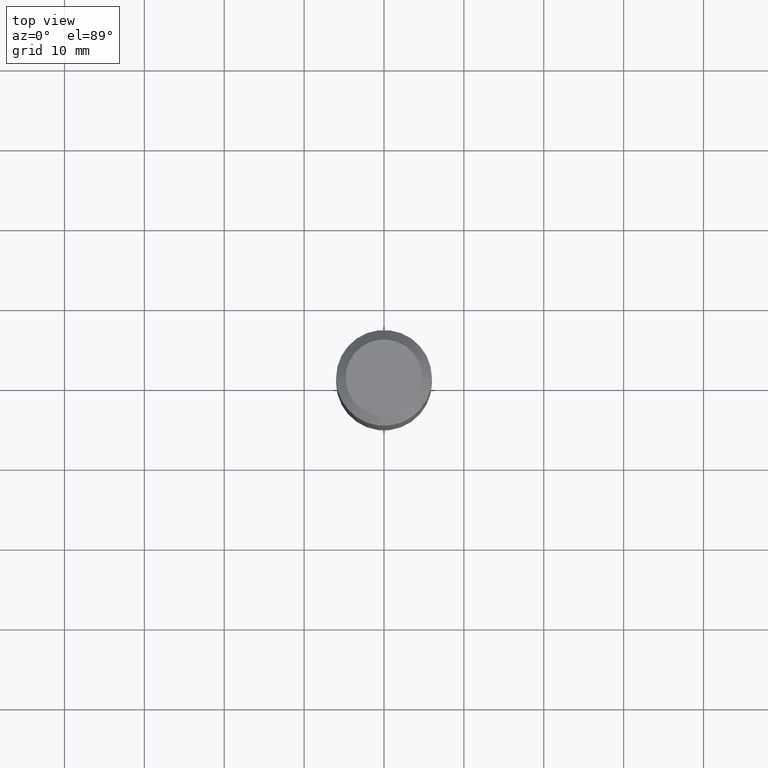
[diagram: clean part render]
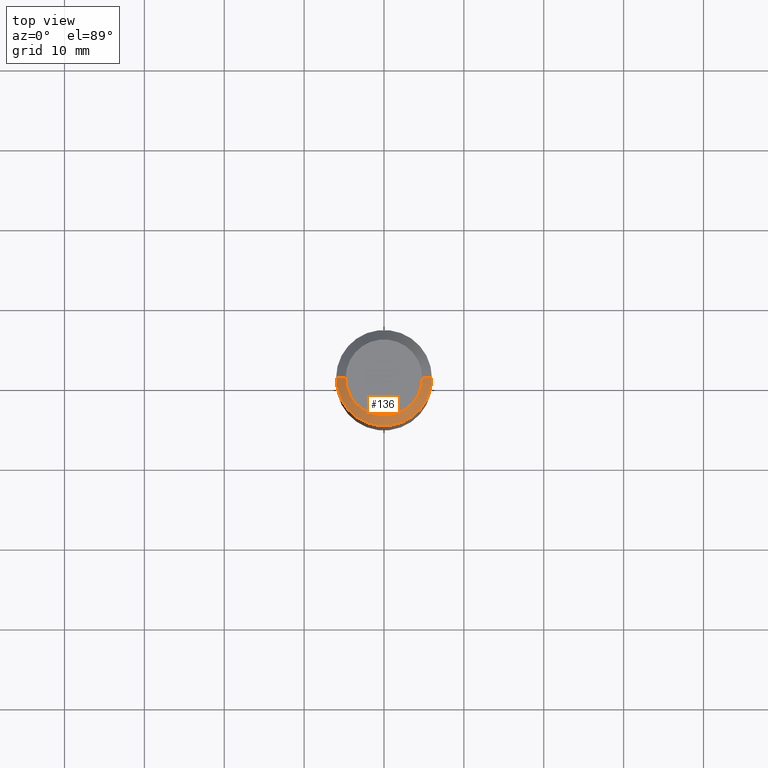
[diagram: same view with one face highlighted and labeled with its STEP entity id]
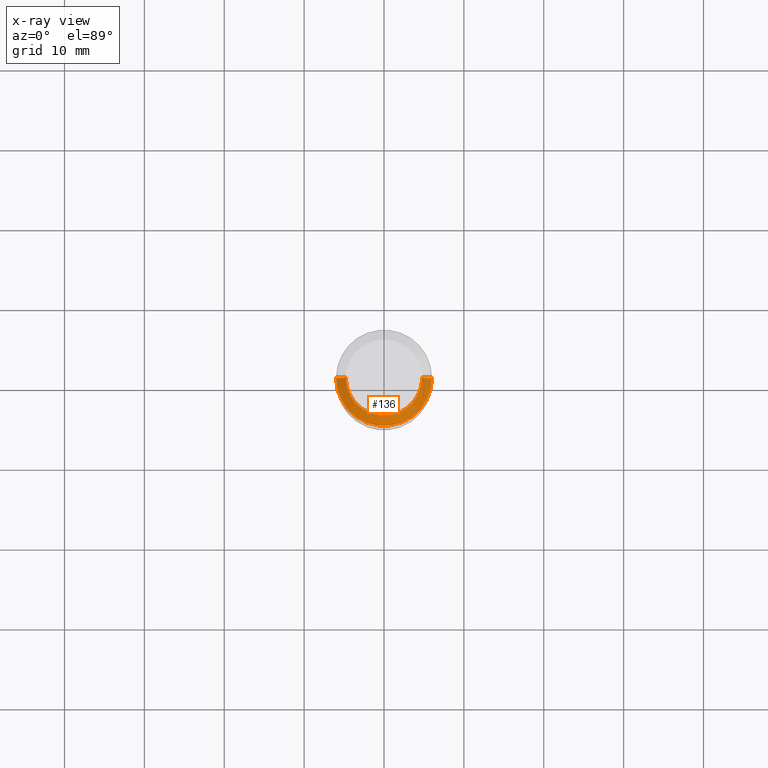
[diagram: x-ray of the same camera — body ghosted, the highlighted face saturated]
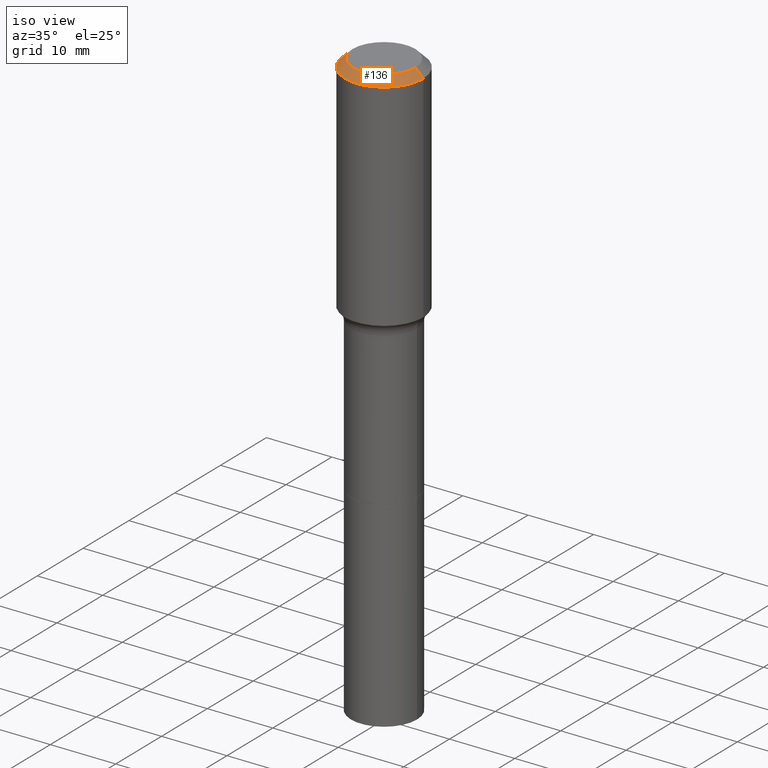
[diagram: same view with one face highlighted and labeled with its STEP entity id]
A machine part, top view. The second image highlights one B-rep face of the part: STEP entity #136.
The next image is the same camera in x-ray: the body ghosted, the highlighted face saturated — about 0% of this face is hidden behind the body in this view.
A second angle (iso view) of the same face is appended — the face is thin or edge-on in the first view.
In plain terms, the highlighted conical surface has half-angle 45 deg.
Its self-contained STEP definition (entity closure, byte-faithful):
#5 = AXIS2_PLACEMENT_3D ( 'NONE', #108, #430, #391 ) ;
#25 = EDGE_CURVE ( 'NONE', #45, #323, #76, .T. ) ;
#37 = DIRECTION ( 'NONE',  ( -0.7071067811865453523, 2.468850131082234184E-15, -0.7071067811865496822 ) ) ;
#45 = VERTEX_POINT ( 'NONE', #111 ) ;
#47 = DIRECTION ( 'NONE',  ( 0.7071067811865453523, -7.319954787623248157E-15, -0.7071067811865496822 ) ) ;
#51 = CARTESIAN_POINT ( 'NONE',  ( 0.2361999999999999933, -1.814313362916447440E-15, -0.04724000000000028870 ) ) ;
#76 = LINE ( 'NONE', #313, #150 ) ;
#82 = EDGE_CURVE ( 'NONE', #310, #170, #438, .T. ) ;
#87 = VECTOR ( 'NONE', #37, 39.37007874015748143 ) ;
#108 = CARTESIAN_POINT ( 'NONE',  ( 1.155239464041865682E-30, -1.649375784469512105E-16, -0.04724000000000028870 ) ) ;
#111 = CARTESIAN_POINT ( 'NONE',  ( 0.1889600000000000168, -1.540873453589747738E-15, 3.855188123725863225E-18 ) ) ;
#114 = CARTESIAN_POINT ( 'NONE',  ( -0.2361999999999999933, 1.484438206022545019E-15, -0.04724000000000028870 ) ) ;
#131 = CARTESIAN_POINT ( 'NONE',  ( -0.1889600000000000168, 1.401969416799070942E-15, 3.855188123706346622E-18 ) ) ;
#133 = ORIENTED_EDGE ( 'NONE', *, *, #373, .F. ) ;
#136 = ADVANCED_FACE ( 'NONE', ( #274 ), #405, .T. ) ;
#150 = VECTOR ( 'NONE', #47, 39.37007874015748143 ) ;
#163 = DIRECTION ( 'NONE',  ( -2.445468806185136597E-29, 3.491481338843145583E-15, 1.000000000000000000 ) ) ;
#170 = VERTEX_POINT ( 'NONE', #478 ) ;
#210 = CARTESIAN_POINT ( 'NONE',  ( 1.155239464041865682E-30, -1.649375784469512105E-16, -0.04724000000000028870 ) ) ;
#214 = DIRECTION ( 'NONE',  ( 1.000000000000000000, -6.982962677686266711E-15, 0.000000000000000000 ) ) ;
#215 = ORIENTED_EDGE ( 'NONE', *, *, #82, .T. ) ;
#247 = EDGE_LOOP ( 'NONE', ( #339, #133, #215, #495 ) ) ;
#251 = CIRCLE ( 'NONE', #419, 0.2361999999999999933 ) ;
#274 = FACE_OUTER_BOUND ( 'NONE', #247, .T. ) ;
#285 = EDGE_CURVE ( 'NONE', #170, #323, #251, .T. ) ;
#310 = VERTEX_POINT ( 'NONE', #131 ) ;
#313 = CARTESIAN_POINT ( 'NONE',  ( 0.2361999999999999933, -1.785387205520586782E-15, -0.04724000000000028870 ) ) ;
#323 = VERTEX_POINT ( 'NONE', #51 ) ;
#339 = ORIENTED_EDGE ( 'NONE', *, *, #25, .F. ) ;
#345 = DIRECTION ( 'NONE',  ( -2.445468806185136597E-29, 3.491481338843145583E-15, 1.000000000000000000 ) ) ;
#373 = EDGE_CURVE ( 'NONE', #310, #45, #481, .T. ) ;
#391 = DIRECTION ( 'NONE',  ( -1.000000000000000000, 6.982962677686266711E-15, 0.000000000000000000 ) ) ;
#405 = CONICAL_SURFACE ( 'NONE', #5, 0.2361999999999999933, 0.7853981633974452814 ) ;
#419 = AXIS2_PLACEMENT_3D ( 'NONE', #210, #163, #214 ) ;
#420 = AXIS2_PLACEMENT_3D ( 'NONE', #500, #345, #508 ) ;
#430 = DIRECTION ( 'NONE',  ( 2.445468806185136597E-29, -3.491481338843145583E-15, -1.000000000000000000 ) ) ;
#438 = LINE ( 'NONE', #114, #87 ) ;
#478 = CARTESIAN_POINT ( 'NONE',  ( -0.2361999999999999933, -7.533761502909610204E-16, -0.04724000000000028870 ) ) ;
#481 = CIRCLE ( 'NONE', #420, 0.1889600000000000168 ) ;
#495 = ORIENTED_EDGE ( 'NONE', *, *, #285, .T. ) ;
#500 = CARTESIAN_POINT ( 'NONE',  ( -9.427742298522546243E-47, 1.346031739168365344E-32, 3.855188123715862256E-18 ) ) ;
#508 = DIRECTION ( 'NONE',  ( 1.000000000000000000, -6.982962677686266711E-15, 4.876185090822587894E-29 ) ) ;